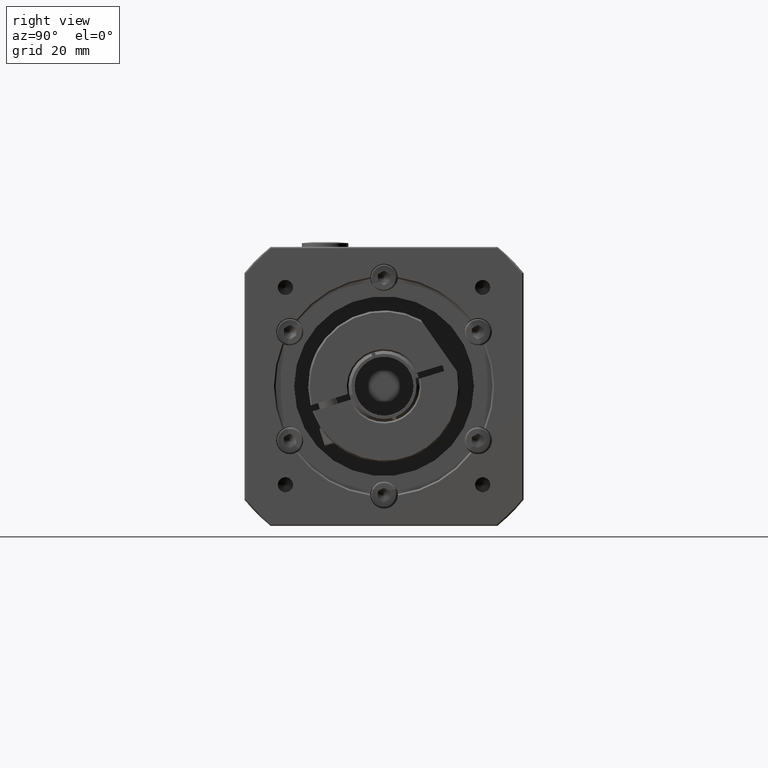
[diagram: clean part render]
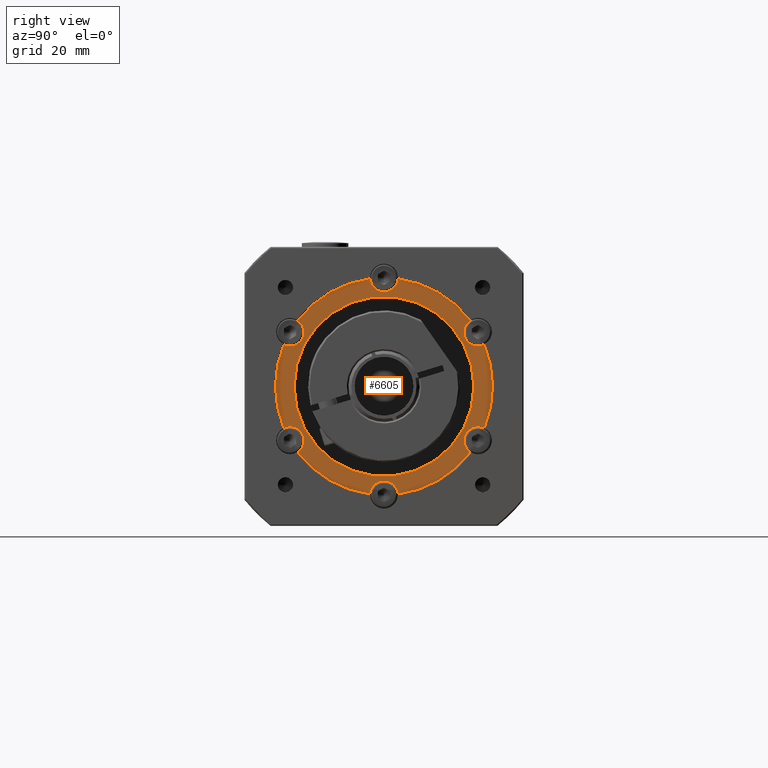
[diagram: same view with one face highlighted and labeled with its STEP entity id]
A machine part, right view. The second image highlights one B-rep face of the part: STEP entity #6605.
In plain terms, the highlighted planar face has unit normal (-1, 0, 0).
Its self-contained STEP definition (entity closure, byte-faithful):
#1045=PLANE('',#7269);
#1240=FACE_BOUND('',#2122,.T.);
#1577=FACE_OUTER_BOUND('',#2121,.T.);
#2121=EDGE_LOOP('',(#5162,#5163,#5164,#5165,#5166,#5167,#5168,#5169,#5170,
#5171,#5172,#5173));
#2122=EDGE_LOOP('',(#5174));
#2638=CIRCLE('',#7233,4.5);
#2641=CIRCLE('',#7238,4.5);
#2644=CIRCLE('',#7243,4.5);
#2647=CIRCLE('',#7248,4.5);
#2649=CIRCLE('',#7252,4.5);
#2652=CIRCLE('',#7257,35.);
#2657=CIRCLE('',#7268,4.5);
#2658=CIRCLE('',#7270,35.);
#2659=CIRCLE('',#7271,35.);
#2660=CIRCLE('',#7272,35.);
#2661=CIRCLE('',#7273,35.);
#2662=CIRCLE('',#7274,35.);
#2663=CIRCLE('',#7275,29.);
#3133=VERTEX_POINT('',#10979);
#3134=VERTEX_POINT('',#10981);
#3138=VERTEX_POINT('',#10999);
#3139=VERTEX_POINT('',#11001);
#3143=VERTEX_POINT('',#11019);
#3144=VERTEX_POINT('',#11021);
#3148=VERTEX_POINT('',#11039);
#3149=VERTEX_POINT('',#11041);
#3152=VERTEX_POINT('',#11057);
#3153=VERTEX_POINT('',#11059);
#3156=VERTEX_POINT('',#11072);
#3161=VERTEX_POINT('',#11089);
#3162=VERTEX_POINT('',#11098);
#3856=EDGE_CURVE('',#3134,#3133,#2638,.T.);
#3863=EDGE_CURVE('',#3139,#3138,#2641,.T.);
#3870=EDGE_CURVE('',#3144,#3143,#2644,.T.);
#3877=EDGE_CURVE('',#3149,#3148,#2647,.T.);
#3883=EDGE_CURVE('',#3153,#3152,#2649,.T.);
#3889=EDGE_CURVE('',#3156,#3152,#2652,.T.);
#3895=EDGE_CURVE('',#3156,#3161,#2657,.T.);
#3896=EDGE_CURVE('',#3153,#3148,#2658,.T.);
#3897=EDGE_CURVE('',#3134,#3161,#2659,.T.);
#3898=EDGE_CURVE('',#3139,#3133,#2660,.T.);
#3899=EDGE_CURVE('',#3144,#3138,#2661,.T.);
#3900=EDGE_CURVE('',#3149,#3143,#2662,.T.);
#3901=EDGE_CURVE('',#3162,#3162,#2663,.T.);
#5162=ORIENTED_EDGE('',*,*,#3877,.T.);
#5163=ORIENTED_EDGE('',*,*,#3896,.F.);
#5164=ORIENTED_EDGE('',*,*,#3883,.T.);
#5165=ORIENTED_EDGE('',*,*,#3889,.F.);
#5166=ORIENTED_EDGE('',*,*,#3895,.T.);
#5167=ORIENTED_EDGE('',*,*,#3897,.F.);
#5168=ORIENTED_EDGE('',*,*,#3856,.T.);
#5169=ORIENTED_EDGE('',*,*,#3898,.F.);
#5170=ORIENTED_EDGE('',*,*,#3863,.T.);
#5171=ORIENTED_EDGE('',*,*,#3899,.F.);
#5172=ORIENTED_EDGE('',*,*,#3870,.T.);
#5173=ORIENTED_EDGE('',*,*,#3900,.F.);
#5174=ORIENTED_EDGE('',*,*,#3901,.T.);
#6605=ADVANCED_FACE('',(#1577,#1240),#1045,.F.);
#7233=AXIS2_PLACEMENT_3D('',#10982,#8601,#8602);
#7238=AXIS2_PLACEMENT_3D('',#11002,#8613,#8614);
#7243=AXIS2_PLACEMENT_3D('',#11022,#8625,#8626);
#7248=AXIS2_PLACEMENT_3D('',#11042,#8637,#8638);
#7252=AXIS2_PLACEMENT_3D('',#11060,#8647,#8648);
#7257=AXIS2_PLACEMENT_3D('',#11074,#8659,#8660);
#7268=AXIS2_PLACEMENT_3D('',#11091,#8682,#8683);
#7269=AXIS2_PLACEMENT_3D('',#11092,#8684,#8685);
#7270=AXIS2_PLACEMENT_3D('',#11093,#8686,#8687);
#7271=AXIS2_PLACEMENT_3D('',#11094,#8688,#8689);
#7272=AXIS2_PLACEMENT_3D('',#11095,#8690,#8691);
#7273=AXIS2_PLACEMENT_3D('',#11096,#8692,#8693);
#7274=AXIS2_PLACEMENT_3D('',#11097,#8694,#8695);
#7275=AXIS2_PLACEMENT_3D('',#11099,#8696,#8697);
#8601=DIRECTION('center_axis',(-1.,1.90928154069666E-17,3.69160211864132E-15));
#8602=DIRECTION('ref_axis',(-1.68752113282163E-15,-0.866025403784437,-0.500000000000002));
#8613=DIRECTION('center_axis',(-1.,1.90928154069666E-17,3.69160211864132E-15));
#8614=DIRECTION('ref_axis',(-3.69160211864132E-15,2.25051458950058E-15,
-1.));
#8625=DIRECTION('center_axis',(-1.,1.90928154069666E-17,3.69160211864132E-15));
#8626=DIRECTION('ref_axis',(-2.00408098581969E-15,0.86602540378444,-0.499999999999998));
#8637=DIRECTION('center_axis',(-1.,1.90928154069666E-17,3.69160211864132E-15));
#8638=DIRECTION('ref_axis',(1.68752113282163E-15,0.866025403784438,0.500000000000001));
#8647=DIRECTION('center_axis',(-1.,1.90928154069666E-17,3.69160211864132E-15));
#8648=DIRECTION('ref_axis',(3.69160211864132E-15,-2.43555176027144E-15,
1.));
#8659=DIRECTION('center_axis',(-1.,1.90928154069666E-17,3.69160211864132E-15));
#8660=DIRECTION('ref_axis',(-3.69160211864132E-15,2.43555176027144E-15,
-1.));
#8682=DIRECTION('center_axis',(-1.,1.90928154069666E-17,3.69160211864132E-15));
#8683=DIRECTION('ref_axis',(2.00408098581968E-15,-0.86602540378444,0.499999999999998));
#8684=DIRECTION('center_axis',(-1.,1.90928154069666E-17,3.69160211864132E-15));
#8685=DIRECTION('ref_axis',(-4.2632564145606E-15,2.1316282072803E-15,-1.));
#8686=DIRECTION('center_axis',(-1.,1.90928154069666E-17,3.69160211864132E-15));
#8687=DIRECTION('ref_axis',(-3.69160211864132E-15,2.43555176027144E-15,
-1.));
#8688=DIRECTION('center_axis',(-1.,1.90928154069666E-17,3.69160211864132E-15));
#8689=DIRECTION('ref_axis',(-3.69160211864132E-15,2.43555176027144E-15,
-1.));
#8690=DIRECTION('center_axis',(-1.,1.90928154069666E-17,3.69160211864132E-15));
#8691=DIRECTION('ref_axis',(-3.69160211864132E-15,2.43555176027144E-15,
-1.));
#8692=DIRECTION('center_axis',(-1.,1.90928154069666E-17,3.69160211864132E-15));
#8693=DIRECTION('ref_axis',(-3.69160211864132E-15,2.43555176027144E-15,
-1.));
#8694=DIRECTION('center_axis',(-1.,1.90928154069666E-17,3.69160211864132E-15));
#8695=DIRECTION('ref_axis',(-3.69160211864132E-15,2.43555176027144E-15,
-1.));
#8696=DIRECTION('center_axis',(-1.,1.90928154069666E-17,3.69160211864132E-15));
#8697=DIRECTION('ref_axis',(-3.69160211864132E-15,2.43555176027144E-15,
-1.));
#10979=CARTESIAN_POINT('',(85.9702896556817,-60.2083419819201,-10.3940226573497));
#10981=CARTESIAN_POINT('',(85.9702896556818,-64.6990338857931,-2.61591611870349));
#10982=CARTESIAN_POINT('Origin',(85.9702896556818,-62.70421671138,-6.64961224516945));
#10999=CARTESIAN_POINT('',(85.9702896556817,-27.9026356750516,-23.8603265308837));
#11001=CARTESIAN_POINT('',(85.9702896556817,-36.8840194827975,-23.8603265308837));
#11002=CARTESIAN_POINT('Origin',(85.9702896556817,-32.3933275789246,-24.1496122451694));
#11019=CARTESIAN_POINT('',(85.9702896556818,-0.0876212720561398,-2.61591611870336));
#11021=CARTESIAN_POINT('',(85.9702896556817,-4.5783131759291,-10.3940226573496));
#11022=CARTESIAN_POINT('Origin',(85.9702896556817,-2.08243844646925,-6.64961224516933));
#11039=CARTESIAN_POINT('',(85.9702896556819,-4.57831317592918,32.0947981670109));
#11041=CARTESIAN_POINT('',(85.9702896556819,-0.0876212720561798,24.3166916283647));
#11042=CARTESIAN_POINT('Origin',(85.9702896556819,-2.08243844646931,28.3503877548307));
#11057=CARTESIAN_POINT('',(85.970289655682,-36.8840194827977,45.5611020405449));
#11059=CARTESIAN_POINT('',(85.970289655682,-27.9026356750518,45.5611020405449));
#11060=CARTESIAN_POINT('Origin',(85.970289655682,-32.3933275789247,45.8503877548306));
#11072=CARTESIAN_POINT('',(85.9702896556819,-60.2083419819202,32.0947981670108));
#11074=CARTESIAN_POINT('Origin',(85.9702896556818,-32.3933275789247,10.8503877548306));
#11089=CARTESIAN_POINT('',(85.9702896556819,-64.6990338857931,24.3166916283646));
#11091=CARTESIAN_POINT('Origin',(85.9702896556819,-62.70421671138,28.3503877548305));
#11092=CARTESIAN_POINT('Origin',(85.9702896556818,-61.3933275789246,10.8503877548305));
#11093=CARTESIAN_POINT('Origin',(85.9702896556818,-32.3933275789247,10.8503877548306));
#11094=CARTESIAN_POINT('Origin',(85.9702896556818,-32.3933275789247,10.8503877548306));
#11095=CARTESIAN_POINT('Origin',(85.9702896556818,-32.3933275789247,10.8503877548306));
#11096=CARTESIAN_POINT('Origin',(85.9702896556818,-32.3933275789247,10.8503877548306));
#11097=CARTESIAN_POINT('Origin',(85.9702896556818,-32.3933275789247,10.8503877548306));
#11098=CARTESIAN_POINT('',(85.9702896556818,-61.3933275789246,10.8503877548305));
#11099=CARTESIAN_POINT('Origin',(85.9702896556818,-32.3933275789247,10.8503877548306));